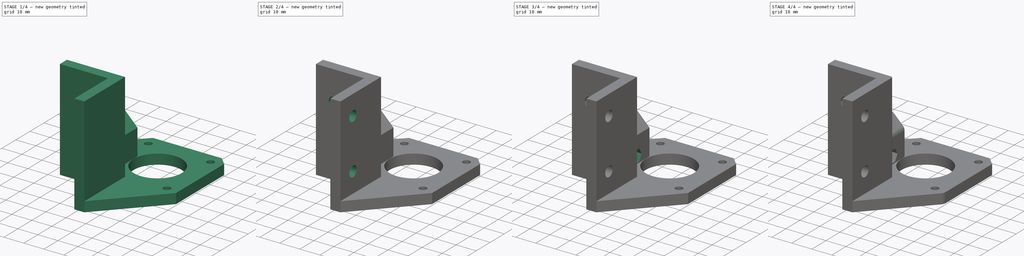
[diagram: build sequence overview — one tinted view per stage of 4, left to right]
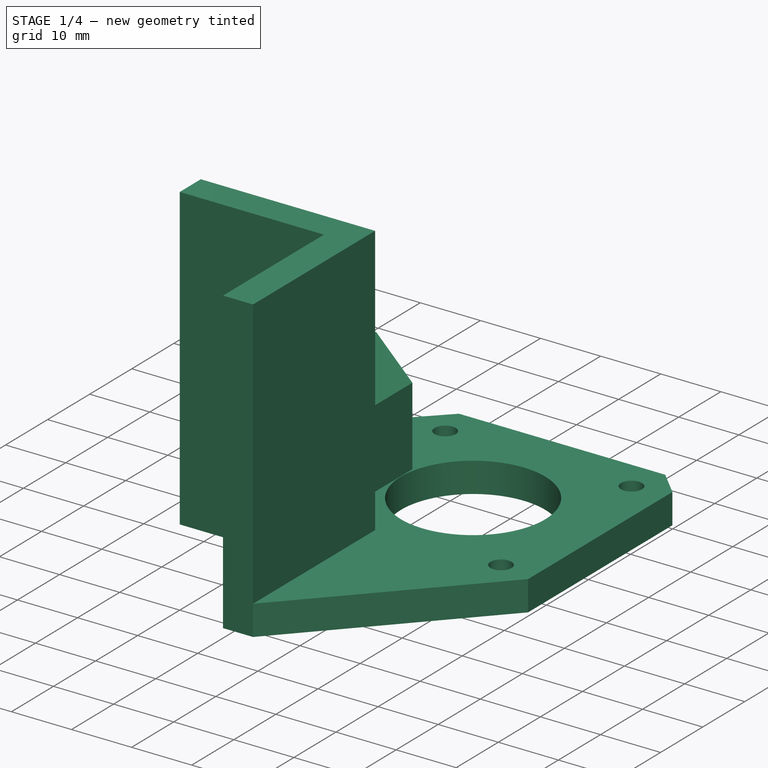
[diagram: stage 1 of 4 — iso view after this stage's code; geometry added in this stage tinted green]
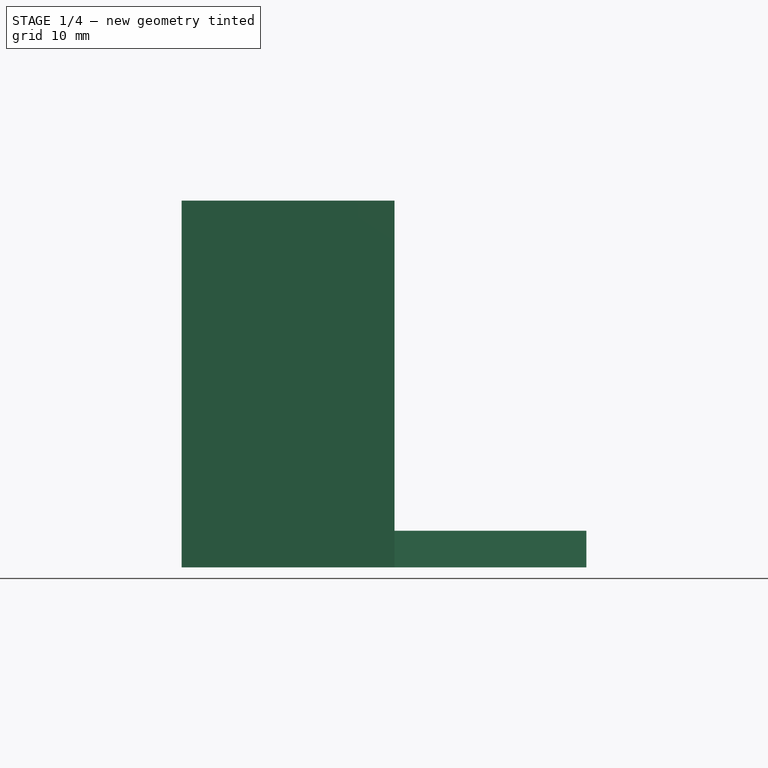
[diagram: stage 1 of 4 — front view after this stage's code; geometry added in this stage tinted green]
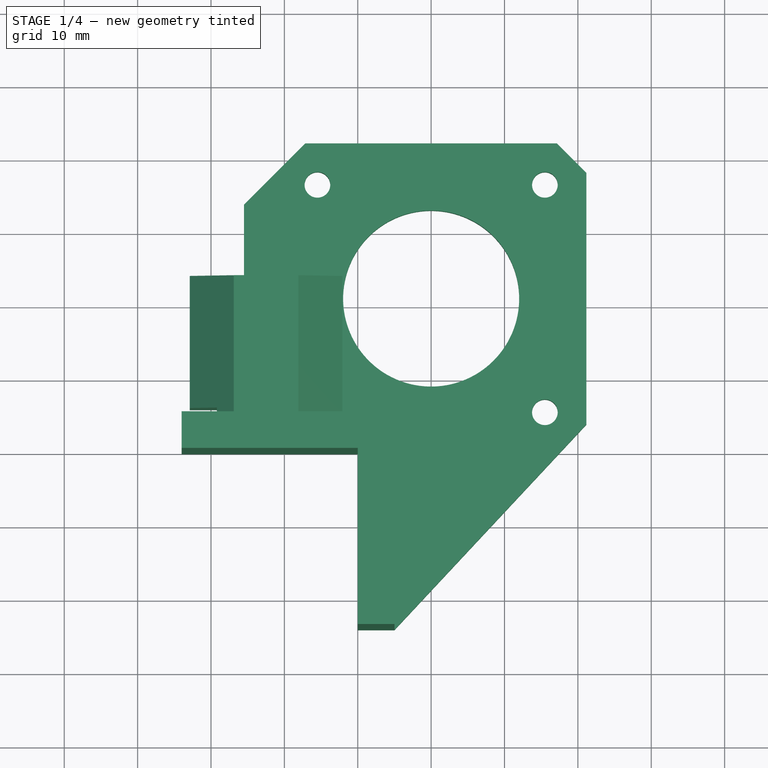
[diagram: stage 1 of 4 — top view after this stage's code; geometry added in this stage tinted green]
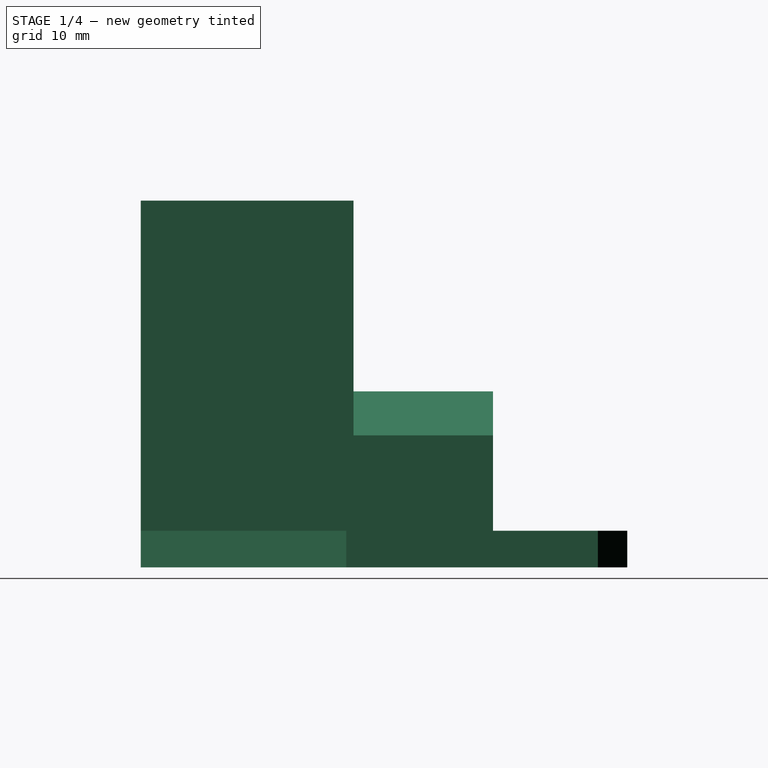
[diagram: stage 1 of 4 — right view after this stage's code; geometry added in this stage tinted green]
FCSTD DOCUMENT  (FreeCAD 0.17R13424 (Git))
Label: Corelia_0_XY_stepper_mount
License: All rights reserved
LicenseURL: http://en.wikipedia.org/wiki/All_rights_reserved
objects: Sketcher::SketchObject×11, PartDesign::Pocket×8, PartDesign::Pad×3, PartDesign::Fillet×2, PartDesign::Chamfer×1, PartDesign::Body×1
note: 37 computed .brp shape members not serialized (recipe doc carries the construction recipe); baked Part::Feature solids carry a one-line shape summary decoded from their .brp

FEATURE [Sketcher::SketchObject] Sketch
  MapMode = 5
  Support = -> [XY_Plane]
  sketch-geometry (19):
    g0: LineSegment StartX=0 StartY=0 StartZ=0 EndX=-24 EndY=0 EndZ=0
    g1: LineSegment StartX=-24 StartY=0 StartZ=0 EndX=-24 EndY=5 EndZ=0
    g2: LineSegment StartX=-24 StartY=5 StartZ=0 EndX=-15.5 EndY=5 EndZ=0
    g3: LineSegment StartX=-15.5 StartY=5 StartZ=0 EndX=-15.5 EndY=33.95 EndZ=0
    g4: LineSegment StartX=-15.5 StartY=33.95 StartZ=0 EndX=-7.15 EndY=42.3 EndZ=0
    g5: LineSegment StartX=-7.15 StartY=42.3 StartZ=0 EndX=27.15 EndY=42.3 EndZ=0
    g6: LineSegment StartX=27.15 StartY=42.3 StartZ=0 EndX=31.15 EndY=38.3 EndZ=0
    g7: LineSegment StartX=31.15 StartY=38.3 StartZ=0 EndX=31.15 EndY=4 EndZ=0
    g8: LineSegment StartX=31.15 StartY=4 StartZ=0 EndX=5 EndY=-24 EndZ=0
    g9: LineSegment StartX=5 StartY=-24 StartZ=0 EndX=0 EndY=-24 EndZ=0
    g10: LineSegment StartX=0 StartY=-24 StartZ=0 EndX=0 EndY=0 EndZ=0
    g11: Circle CenterX=10 CenterY=21.15 CenterZ=0 NormalX=0 NormalY=0 NormalZ=1 AngleXU=0 Radius=12
    g12: LineSegment [constr] StartX=-5.5 StartY=36.65 StartZ=0 EndX=25.5 EndY=36.65 EndZ=0
    g13: LineSegment [constr] StartX=25.5 StartY=36.65 StartZ=0 EndX=25.5 EndY=5.65 EndZ=0
    g14: LineSegment [constr] StartX=25.5 StartY=5.65 StartZ=0 EndX=-5.5 EndY=5.65 EndZ=0
    g15: LineSegment [constr] StartX=-5.5 StartY=5.65 StartZ=0 EndX=-5.5 EndY=36.65 EndZ=0
    g16: Circle CenterX=-5.5 CenterY=36.65 CenterZ=0 NormalX=0 NormalY=0 NormalZ=1 AngleXU=0 Radius=1.75
    g17: Circle CenterX=25.5 CenterY=36.65 CenterZ=0 NormalX=0 NormalY=0 NormalZ=1 AngleXU=0 Radius=1.75
    g18: Circle CenterX=25.5 CenterY=5.65 CenterZ=0 NormalX=0 NormalY=0 NormalZ=1 AngleXU=0 Radius=1.75
  constraints (53):
    c: Coincident(g-1,g0)
    c: PointOnObject(g0,g-1)
    c: Coincident(g0,g1)
    c: Vertical(g1)
    c: Coincident(g1,g2)
    c: Horizontal(g2)
    c: Coincident(g4,g5)
    c: Horizontal(g5)
    c: Coincident(g5,g6)
    c: Coincident(g6,g7)
    c: Vertical(g7)
    c: Coincident(g7,g8)
    c: Coincident(g8,g9)
    c: Horizontal(g9)
    c: Coincident(g9,g10)
    c: Coincident(g10,g0)
    c: Vertical(g10)
    c: DistanceY(g10,g10) = 24
    c: DistanceX(g0,g0) = 24
    c: DistanceX(g2,g2) = 8.5
    c: Vertical(g3)
    c: DistanceX(g5,g6) = 4
    c: DistanceY(g6,g5) = 4
    c: DistanceY(g7,g5) = 38.3
    c: DistanceY(g0,g4) = 42.3
    c: Radius(g11) = 12
    c: DistanceX(g11) = 10
    c: DistanceY(g11) = 21.15
    c: DistanceX(g11,g7) = 21.15
    c: DistanceY(g1,g1) = 5
    c: Coincident(g12,g13)
    c: Coincident(g13,g14)
    c: Coincident(g14,g15)
    c: Coincident(g15,g12)
    c: Horizontal(g12)
    c: Horizontal(g14)
    c: Vertical(g13)
    c: Vertical(g15)
    c: Equal(g15,g12)
    c: DistanceY(g13,g12) = 31
    c: DistanceX(g11,g13) = 15.5
    c: DistanceY(g13,g11) = 15.5
    c: Coincident(g16,g12)
    c: Coincident(g17,g12)
    c: Coincident(g18,g13)
    c: Equal(g16,g17)
    c: Equal(g17,g18)
    c: Radius(g16) = 1.75
    c: Coincident(g3,g2)
    c: DistanceX(g9,g9) = 5
    c: Angle(g4,g5) = 2.35619
    c: Coincident(g3,g4)
    c: DistanceX(g4,g12) = 1.65
FEATURE [PartDesign::Pad] Pad  label="Base"
  Length = 5
  Length2 = 100
  Profile = -> Sketch
  Type = 0
FEATURE [Sketcher::SketchObject] Sketch001
  MapMode = 5
  Placement = pos=(0,0,5) rot=(0,0,1;0rad)
  Support = -> [Pad]
  sketch-geometry (6):
    g0: LineSegment StartX=0 StartY=0 StartZ=0 EndX=-24 EndY=0 EndZ=0
    g1: LineSegment StartX=-24 StartY=0 StartZ=0 EndX=-24 EndY=5 EndZ=0
    g2: LineSegment StartX=-24 StartY=5 StartZ=0 EndX=5 EndY=5 EndZ=0
    g3: LineSegment StartX=5 StartY=5 StartZ=0 EndX=5 EndY=-24 EndZ=0
    g4: LineSegment StartX=5 StartY=-24 StartZ=0 EndX=0 EndY=-24 EndZ=0
    g5: LineSegment StartX=0 StartY=-24 StartZ=0 EndX=0 EndY=0 EndZ=0
  constraints (17):
    c: Coincident(g-1,g0)
    c: PointOnObject(g0,g-1)
    c: Coincident(g0,g1)
    c: Vertical(g1)
    c: Coincident(g1,g2)
    c: Horizontal(g2)
    c: Coincident(g2,g3)
    c: Vertical(g3)
    c: Coincident(g3,g4)
    c: PointOnObject(g4,g-2)
    c: Horizontal(g4)
    c: Coincident(g4,g5)
    c: Coincident(g5,g0)
    c: Equal(g1,g4)
    c: DistanceY(g1,g1) = 5
    c: Equal(g5,g0)
    c: DistanceY(g5,g5) = 24
FEATURE [PartDesign::Pad] Pad001  label="walls"
  BaseFeature = -> Pad
  Length = 45
  Length2 = 100
  Profile = -> Sketch001
  Type = 0
FEATURE [Sketcher::SketchObject] Sketch002
  MapMode = 5
  Placement = pos=(0,5,0) rot=(0,0.707107,0.707107;3.14159rad)
  Support = -> [Pad001]
  sketch-geometry (8):
    g0: LineSegment StartX=22.9 StartY=0 StartZ=0 EndX=22.9 EndY=18 EndZ=0
    g1: LineSegment StartX=22.9 StartY=18 StartZ=0 EndX=16.9 EndY=24 EndZ=0
    g2: LineSegment StartX=16.9 StartY=24 StartZ=0 EndX=8.1 EndY=24 EndZ=0
    g3: LineSegment StartX=8.1 StartY=24 StartZ=0 EndX=2.1 EndY=18 EndZ=0
    g4: LineSegment StartX=2.1 StartY=18 StartZ=0 EndX=2.1 EndY=5 EndZ=0
    g5: LineSegment StartX=2.1 StartY=5 StartZ=0 EndX=16.5 EndY=5 EndZ=0
    g6: LineSegment StartX=16.5 StartY=5 StartZ=0 EndX=16.5 EndY=0 EndZ=0
    g7: LineSegment StartX=16.5 StartY=0 StartZ=0 EndX=22.9 EndY=0 EndZ=0
  constraints (24):
    c: Vertical(g0)
    c: Coincident(g0,g1)
    c: Coincident(g1,g2)
    c: Horizontal(g2)
    c: Coincident(g2,g3)
    c: Coincident(g3,g4)
    c: Vertical(g4)
    c: DistanceX(g4,g0) = 20.8
    c: DistanceY(g0,g1) = 24
    c: Equal(g3,g1)
    c: Angle(g3,g2) = 2.35619
    c: Angle(g2,g1) = 2.35619
    c: Coincident(g5,g4)
    c: Horizontal(g5)
    c: Coincident(g6,g5)
    c: Vertical(g6)
    c: Coincident(g7,g6)
    c: Horizontal(g7)
    c: Coincident(g7,g0)
    c: DistanceY(g6,g5) = 5
    c: DistanceX(g5) = 16.5
    c: DistanceY(g5) = 5
    c: DistanceX(g7,g7) = 6.4
    c: DistanceY(g0,g0) = 18
FEATURE [PartDesign::Pad] Pad002  label="rod_house"
  BaseFeature = -> Pad001
  Length = 19
  Length2 = 100
  Profile = -> Sketch002
  Type = 0
FEATURE [Sketcher::SketchObject] Sketch003
  MapMode = 5
  Placement = pos=(0,5,0) rot=(0,0.707107,0.707107;3.14159rad)
  Support = -> [Pad002]
  sketch-geometry (5):
    g0: LineSegment StartX=15.5 StartY=0 StartZ=0 EndX=15.5 EndY=18 EndZ=0
    g1: LineSegment StartX=22.9 StartY=18 StartZ=0 EndX=22.9 EndY=0 EndZ=0
    g2: LineSegment StartX=22.9 StartY=0 StartZ=0 EndX=15.5 EndY=0 EndZ=0
    g3: LineSegment StartX=15.5 StartY=18 StartZ=0 EndX=19.2 EndY=21.7 EndZ=0
    g4: LineSegment StartX=19.2 StartY=21.7 StartZ=0 EndX=22.9 EndY=18 EndZ=0
  constraints (15):
    c: PointOnObject(g0,g-1)
    c: Vertical(g0)
    c: Vertical(g1)
    c: Coincident(g1,g2)
    c: Horizontal(g2)
    c: Coincident(g2,g0)
    c: DistanceX(g2,g2) = 7.4
    c: DistanceX(g-1,g0) = 15.5
    c: Coincident(g0,g3)
    c: Coincident(g3,g4)
    c: Coincident(g4,g1)
    c: Angle(g0,g3) = 2.35619
    c: Angle(g4,g1) = 2.35619
    c: Equal(g0,g1)
    c: DistanceY(g1,g1) = 18
FEATURE [PartDesign::Pocket] Pocket  label="hod_house_back_cut"
  BaseFeature = -> Pad002
  Length = 1
  Length2 = 100
  Profile = -> Sketch003
  Reversed = true
  Type = 0
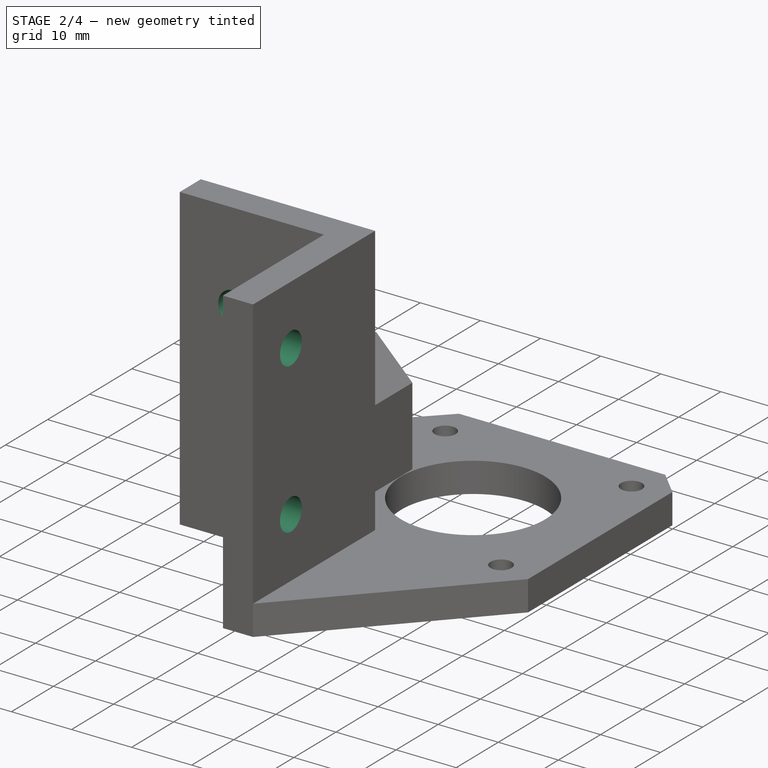
[diagram: stage 2 of 4 — iso view after this stage's code; geometry added in this stage tinted green]
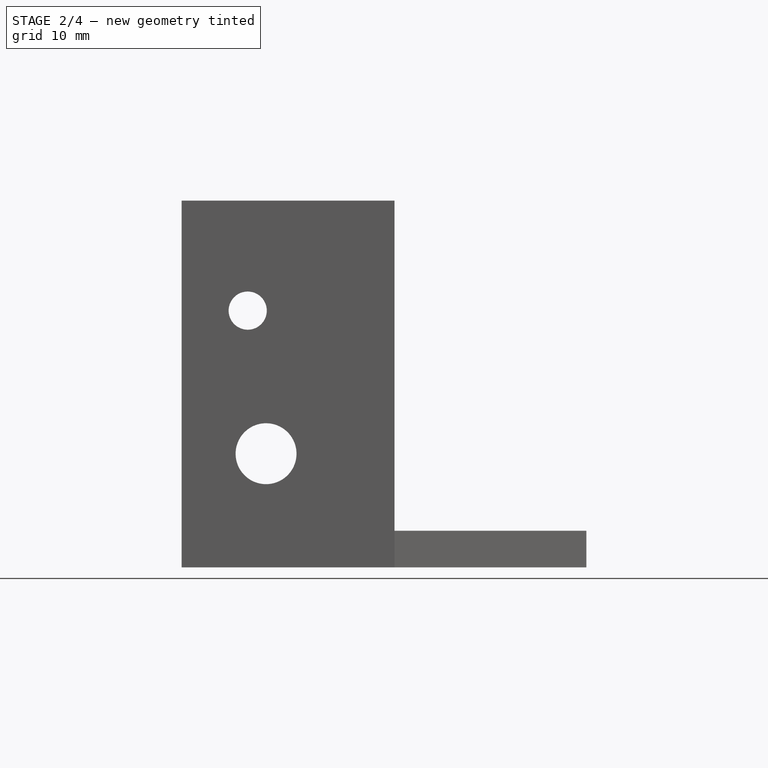
[diagram: stage 2 of 4 — front view after this stage's code; geometry added in this stage tinted green]
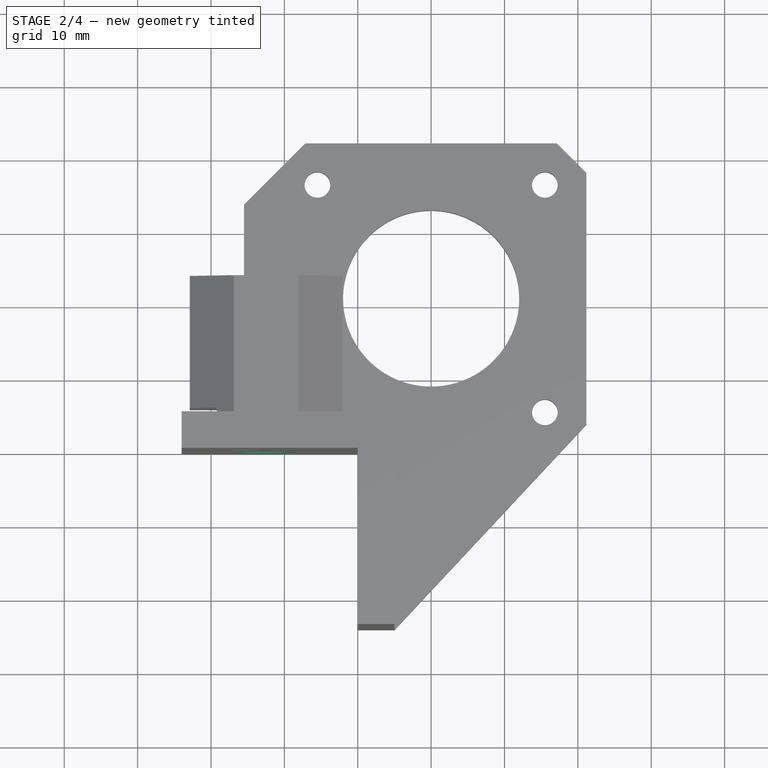
[diagram: stage 2 of 4 — top view after this stage's code; geometry added in this stage tinted green]
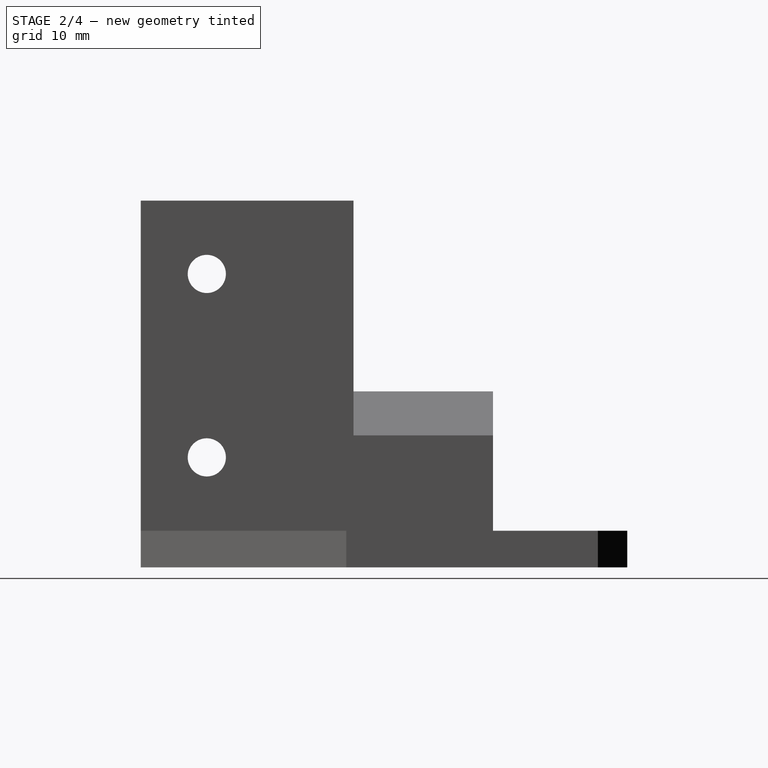
[diagram: stage 2 of 4 — right view after this stage's code; geometry added in this stage tinted green]
FEATURE [Sketcher::SketchObject] Sketch004
  MapMode = 5
  Placement = pos=(0,24,0) rot=(0,0.707107,0.707107;3.14159rad)
  Support = -> [Pocket]
  sketch-geometry (1):
    g0: Circle CenterX=12.5 CenterY=15.5 CenterZ=0 NormalX=0 NormalY=0 NormalZ=1 AngleXU=0 Radius=4.15
  constraints (3):
    c: DistanceX(g0) = 12.5
    c: DistanceY(g0) = 15.5
    c: Radius(g0) = 4.15
FEATURE [PartDesign::Pocket] Pocket001  label="rod_hole"
  BaseFeature = -> Pocket
  Length = 0
  Length2 = 100
  Profile = -> Sketch004
  Type = 1
FEATURE [Sketcher::SketchObject] Sketch005
  MapMode = 5
  Placement = pos=(0,0,0) rot=(1,0,0;1.5708rad)
  Support = -> [Pocket001]
  sketch-geometry (1):
    g0: Circle CenterX=-15 CenterY=35 CenterZ=0 NormalX=0 NormalY=0 NormalZ=1 AngleXU=0 Radius=2.6
  constraints (3):
    c: DistanceX(g0) = -15
    c: DistanceY(g0) = 35
    c: Radius(g0) = 2.6
FEATURE [PartDesign::Pocket] Pocket002  label="wall_hole"
  BaseFeature = -> Pocket001
  Length = 5
  Length2 = 100
  Profile = -> Sketch005
  Type = 1
FEATURE [Sketcher::SketchObject] Sketch006
  MapMode = 5
  Placement = pos=(0,0,0) rot=(0.57735,-0.57735,-0.57735;2.0944rad)
  Support = -> [Pocket002]
  sketch-geometry (2):
    g0: Circle CenterX=15 CenterY=40 CenterZ=0 NormalX=0 NormalY=0 NormalZ=1 AngleXU=0 Radius=2.6
    g1: Circle CenterX=15 CenterY=15 CenterZ=0 NormalX=0 NormalY=0 NormalZ=1 AngleXU=0 Radius=2.6
  constraints (6):
    c: Equal(g0,g1)
    c: DistanceX(g1) = 15
    c: DistanceY(g1) = 15
    c: Radius(g1) = 2.6
    c: DistanceX(g0) = 15
    c: DistanceY(g0) = 40
FEATURE [PartDesign::Pocket] Pocket003  label="wall_holes"
  BaseFeature = -> Pocket002
  Length = 5
  Length2 = 100
  Profile = -> Sketch006
  Type = 0
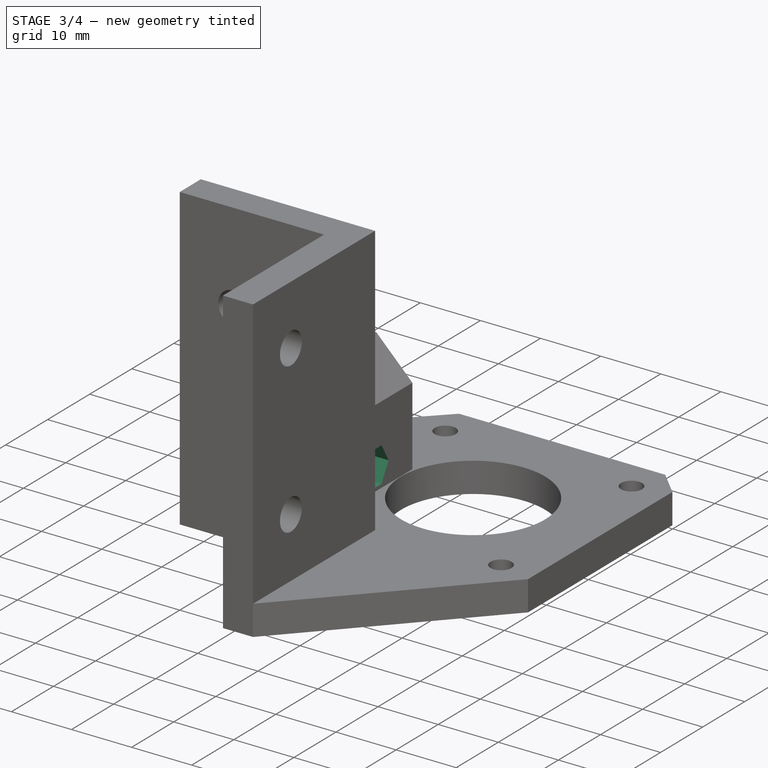
[diagram: stage 3 of 4 — iso view after this stage's code; geometry added in this stage tinted green]
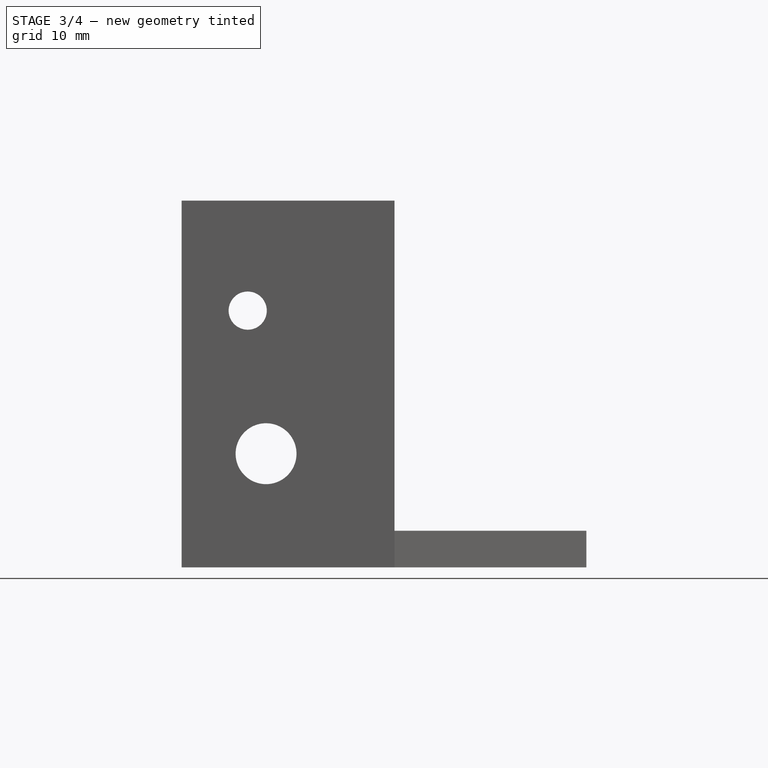
[diagram: stage 3 of 4 — front view after this stage's code; geometry added in this stage tinted green]
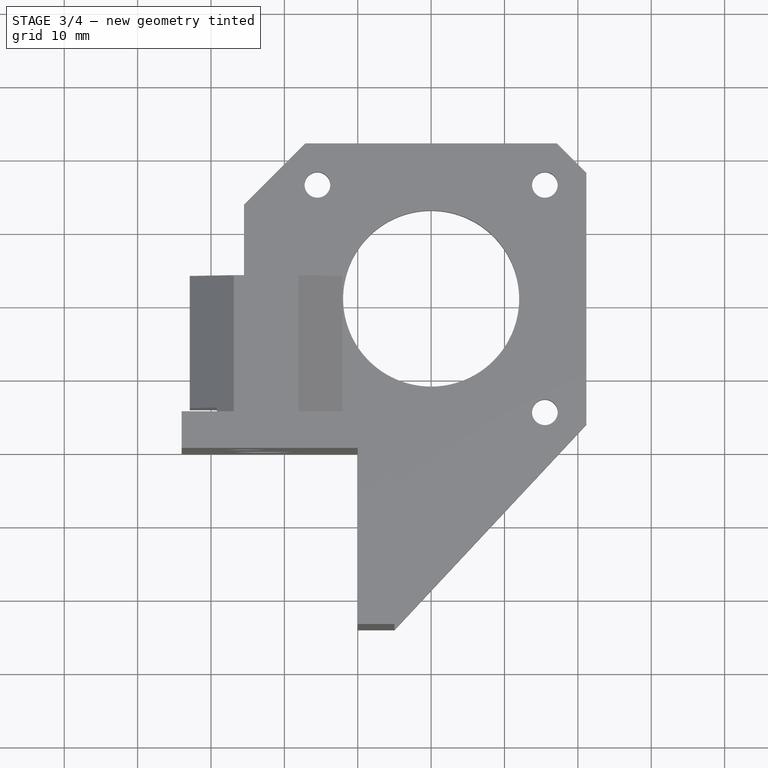
[diagram: stage 3 of 4 — top view after this stage's code; geometry added in this stage tinted green]
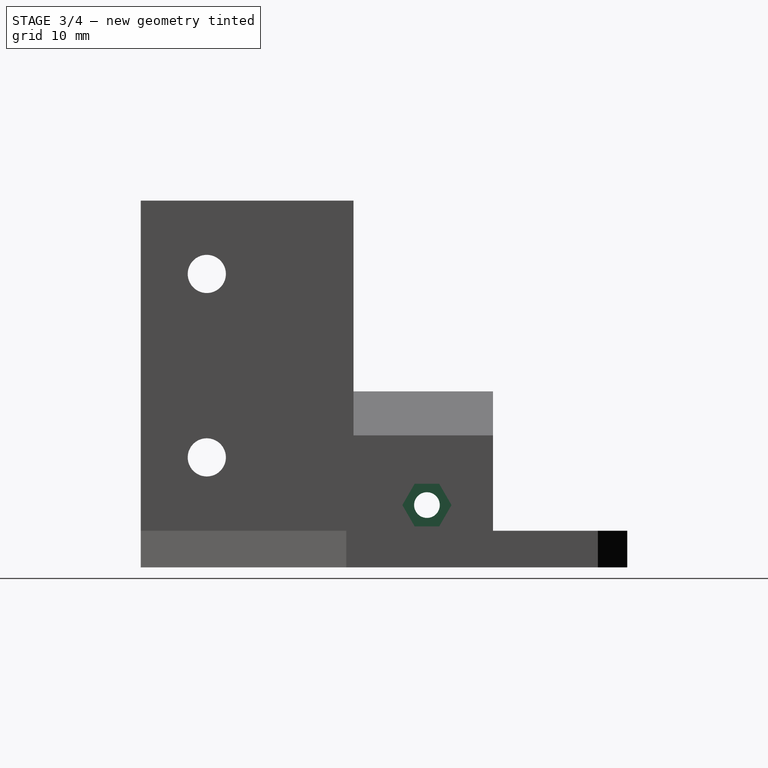
[diagram: stage 3 of 4 — right view after this stage's code; geometry added in this stage tinted green]
FEATURE [Sketcher::SketchObject] Sketch008
  MapMode = 5
  Placement = pos=(-2.1,0,0) rot=(0.57735,0.57735,0.57735;2.0944rad)
  Support = -> [Pocket003]
  sketch-geometry (1):
    g0: Circle CenterX=15 CenterY=8.5 CenterZ=0 NormalX=0 NormalY=0 NormalZ=1 AngleXU=0 Radius=1.75
  constraints (3):
    c: DistanceX(g0) = 15
    c: DistanceY(g0) = 8.5
    c: Radius(g0) = 1.75
FEATURE [PartDesign::Pocket] Pocket004  label="clamp_screw_hole"
  BaseFeature = -> Pocket003
  Length = 5
  Length2 = 100
  Profile = -> Sketch008
  Type = 1
FEATURE [Sketcher::SketchObject] Sketch009
  MapMode = 5
  Placement = pos=(-2.1,0,0) rot=(0.57735,0.57735,0.57735;2.0944rad)
  Support = -> [Pocket004]
  sketch-geometry (7):
    g0: LineSegment StartX=16.6743 StartY=5.6 StartZ=0 EndX=18.3486 EndY=8.5 EndZ=0
    g1: LineSegment StartX=18.3486 StartY=8.5 StartZ=0 EndX=16.6743 EndY=11.4 EndZ=0
    g2: LineSegment StartX=16.6743 StartY=11.4 StartZ=0 EndX=13.3257 EndY=11.4 EndZ=0
    g3: LineSegment StartX=13.3257 StartY=11.4 StartZ=0 EndX=11.6514 EndY=8.5 EndZ=0
    g4: LineSegment StartX=11.6514 StartY=8.5 StartZ=0 EndX=13.3257 EndY=5.6 EndZ=0
    g5: LineSegment StartX=13.3257 StartY=5.6 StartZ=0 EndX=16.6743 EndY=5.6 EndZ=0
    g6: Circle [constr] CenterX=15 CenterY=8.5 CenterZ=0 NormalX=0 NormalY=0 NormalZ=1 AngleXU=0 Radius=3.34863
  constraints (17):
    c: Coincident(g0,g1)
    c: Coincident(g1,g2)
    c: Coincident(g2,g3)
    c: Coincident(g3,g4)
    c: Coincident(g4,g5)
    c: Coincident(g5,g0)
    c: Equal(g0, g1-g5) x5
    c: PointOnObject(g0,g6)
    c: PointOnObject(g1,g6)
    c: PointOnObject(g2,g6)
    c: PointOnObject(g3,g6)
    c: PointOnObject(g4,g6)
    c: PointOnObject(g5,g6)
    c: Horizontal(g2)
    c: DistanceY(g0,g1) = 5.8
    c: DistanceX(g6) = 15
    c: DistanceY(g6) = 8.5
FEATURE [PartDesign::Pocket] Pocket005  label="clamp_nut_hole"
  BaseFeature = -> Pocket004
  Length = 5
  Length2 = 100
  Profile = -> Sketch009
  Type = 0
FEATURE [Sketcher::SketchObject] Sketch010
  MapMode = 5
  Placement = pos=(-22.9,0,0) rot=(0.57735,-0.57735,-0.57735;2.0944rad)
  Support = -> [Pocket005]
  sketch-geometry (1):
    g0: Circle CenterX=-15 CenterY=8.5 CenterZ=0 NormalX=0 NormalY=0 NormalZ=1 AngleXU=0 Radius=3.2
  constraints (3):
    c: Radius(g0) = 3.2
    c: DistanceX(g0) = -15
    c: DistanceY(g0) = 8.5
FEATURE [PartDesign::Pocket] Pocket006  label="clamp_screw_head_hole"
  BaseFeature = -> Pocket005
  Length = 3
  Length2 = 100
  Profile = -> Sketch010
  Type = 0
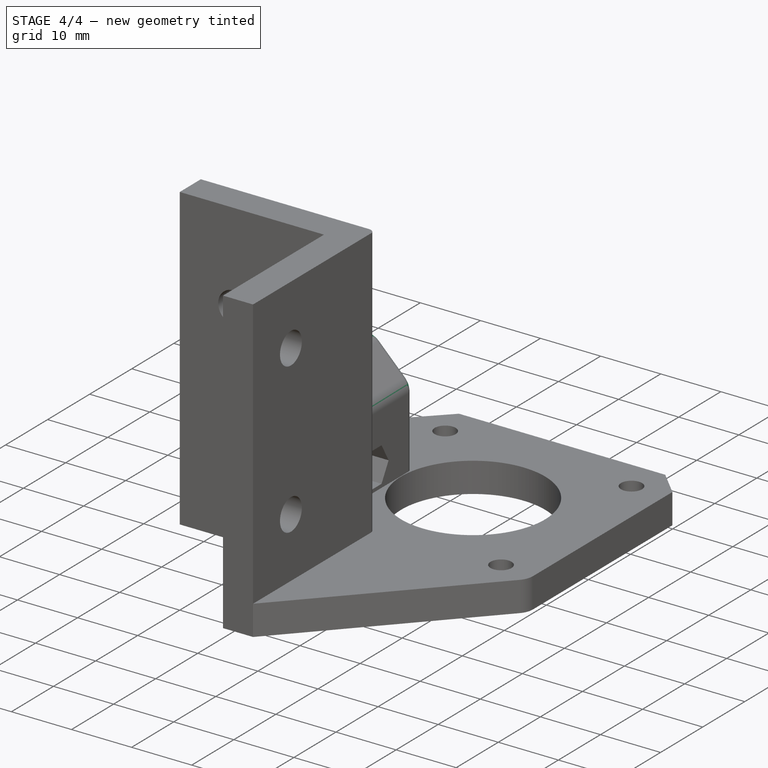
[diagram: stage 4 of 4 — iso view after this stage's code; geometry added in this stage tinted green]
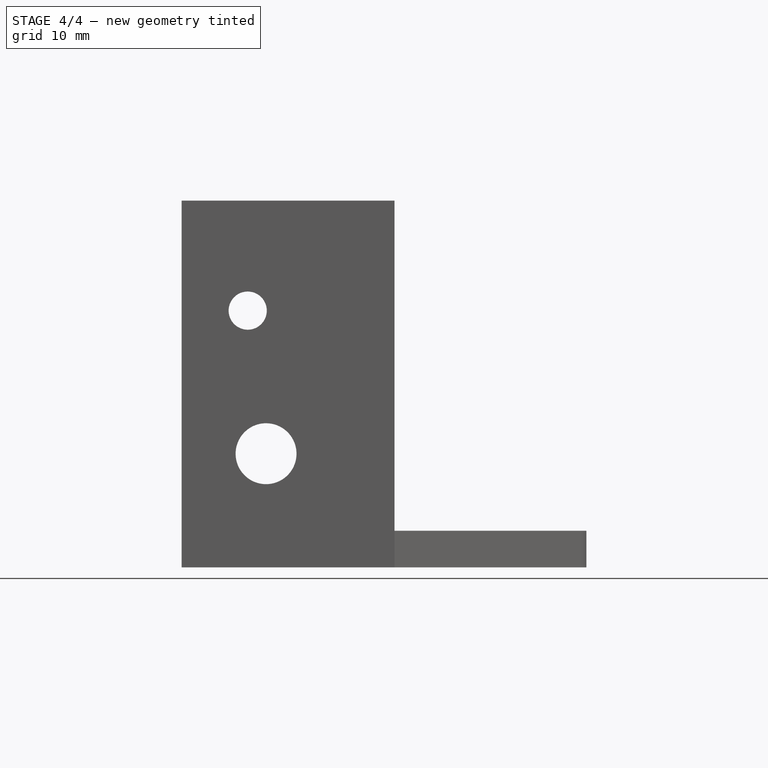
[diagram: stage 4 of 4 — front view after this stage's code; geometry added in this stage tinted green]
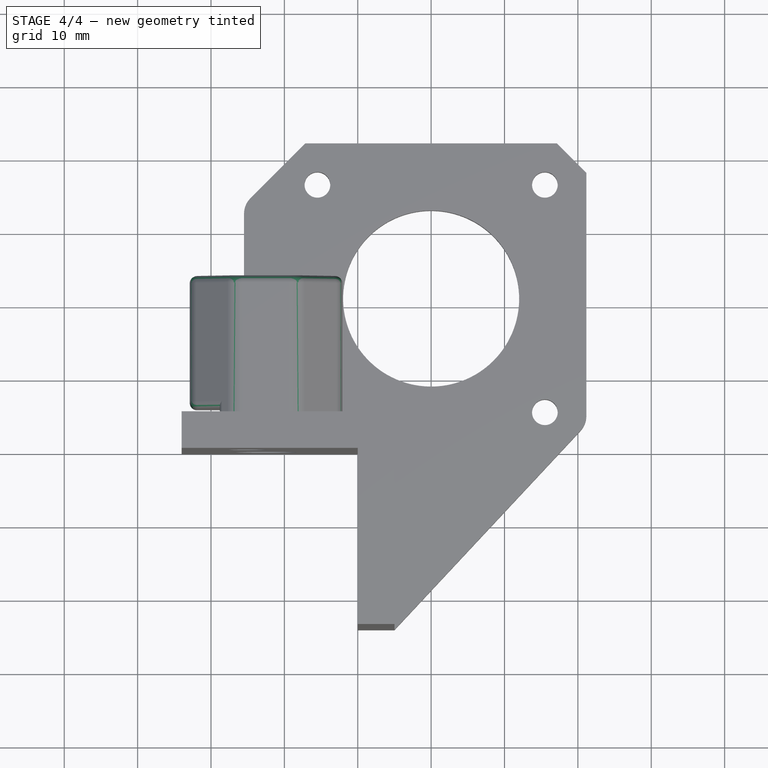
[diagram: stage 4 of 4 — top view after this stage's code; geometry added in this stage tinted green]
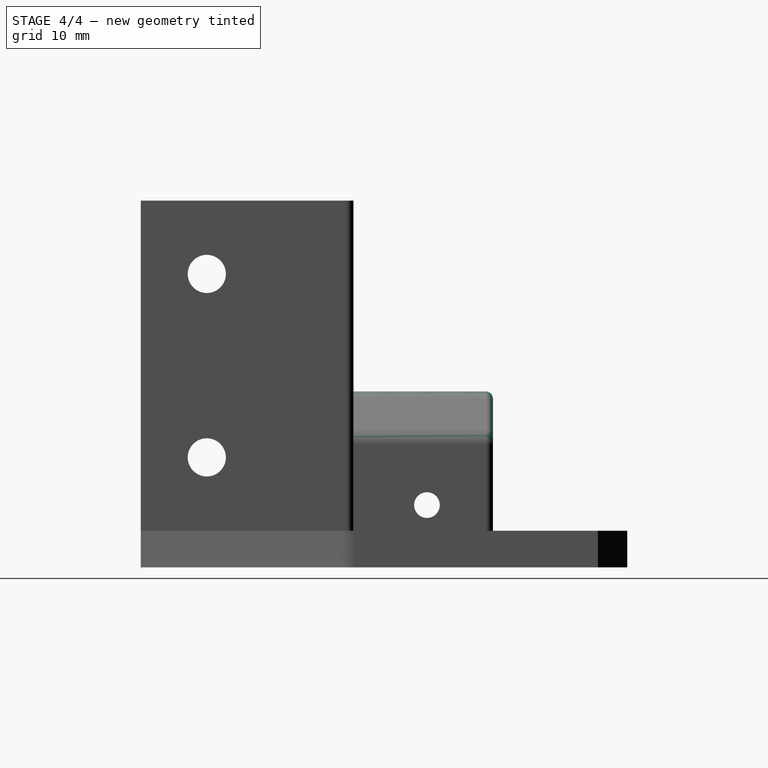
[diagram: stage 4 of 4 — right view after this stage's code; geometry added in this stage tinted green]
FEATURE [Sketcher::SketchObject] Sketch011
  MapMode = 5
  Placement = pos=(0,24,0) rot=(0,0.707107,0.707107;3.14159rad)
  Support = -> [Pocket006]
  sketch-geometry (4):
    g0: LineSegment StartX=15.5 StartY=15 StartZ=0 EndX=16.5 EndY=15 EndZ=0
    g1: LineSegment StartX=16.5 StartY=15 StartZ=0 EndX=16.5 EndY=5 EndZ=0
    g2: LineSegment StartX=16.5 StartY=5 StartZ=0 EndX=15.5 EndY=5 EndZ=0
    g3: LineSegment StartX=15.5 StartY=5 StartZ=0 EndX=15.5 EndY=15 EndZ=0
  constraints (12):
    c: Coincident(g0,g1)
    c: Coincident(g1,g2)
    c: Coincident(g2,g3)
    c: Coincident(g3,g0)
    c: Horizontal(g0)
    c: Horizontal(g2)
    c: Vertical(g1)
    c: Vertical(g3)
    c: DistanceX(g2,g2) = 1
    c: DistanceX(g2) = 15.5
    c: DistanceY(g3,g3) = 10
    c: DistanceY(g2) = 5
FEATURE [PartDesign::Pocket] Pocket007  label="rod_house_front_cut"
  BaseFeature = -> Pocket006
  Length = 18.99
  Length2 = 100
  Profile = -> Sketch011
  Type = 0
FEATURE [PartDesign::Fillet] Fillet
  Base = -> Pocket007 [Edge39,Edge59,Edge125,Edge124,Edge122,Edge123]
  BaseFeature = -> Pocket007
  Radius = 3
FEATURE [PartDesign::Fillet] Fillet001
  Base = -> Fillet [Edge93,Edge113,Edge95,Edge135]
  BaseFeature = -> Fillet
  Radius = 1
FEATURE [PartDesign::Chamfer] Chamfer
  Base = -> Fillet001 [Edge18]
  BaseFeature = -> Fillet001
  Size = 1
FEATURE [PartDesign::Body] Body
  Group = -> [Sketch,Pad,Sketch001,Pad001,Sketch002,Pad002,Sketch003,Pocket,Sketch004,Pocket001,Sketch005,Pocket002,Sketch006,Pocket003,Sketch008,Pocket004,Sketch009,Pocket005,Sketch010,Pocket006,Sketch011,Pocket007,Fillet,Fillet001,Chamfer]
  Origin = -> Origin
  Tip = -> Chamfer
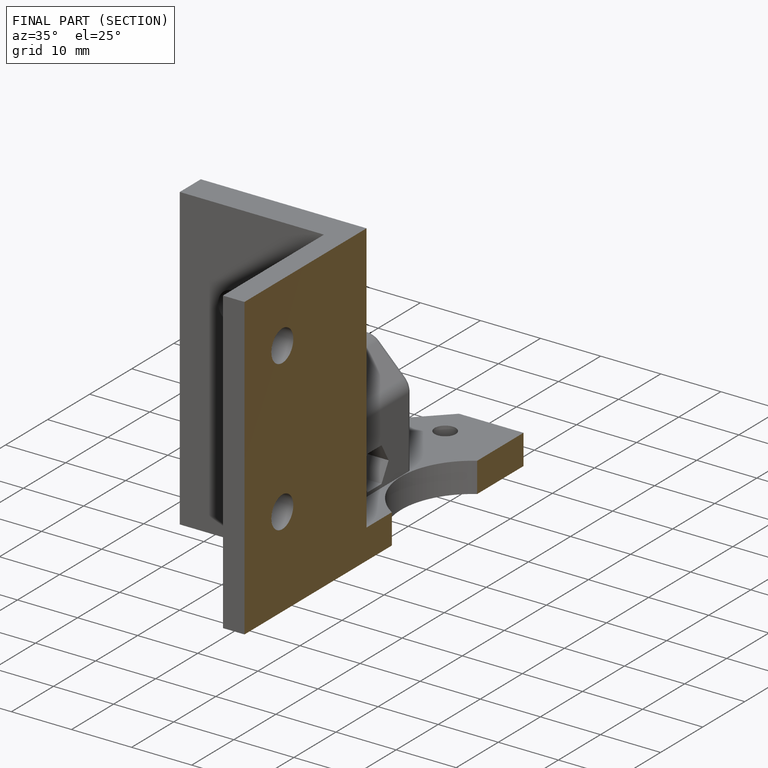
[diagram: finished part — half-section view (interior)]
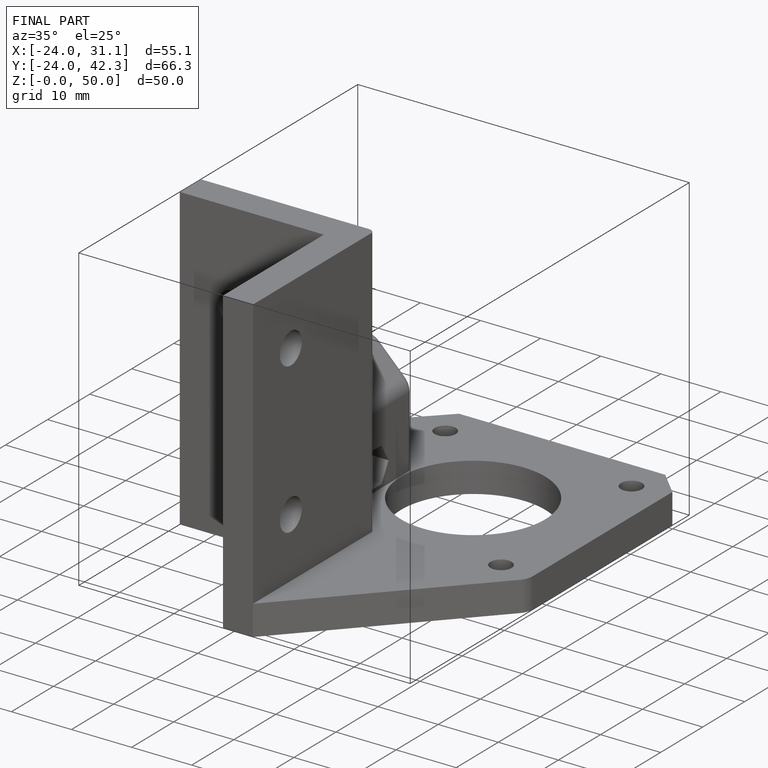
[diagram: finished part — iso view with bounding-box wireframe]
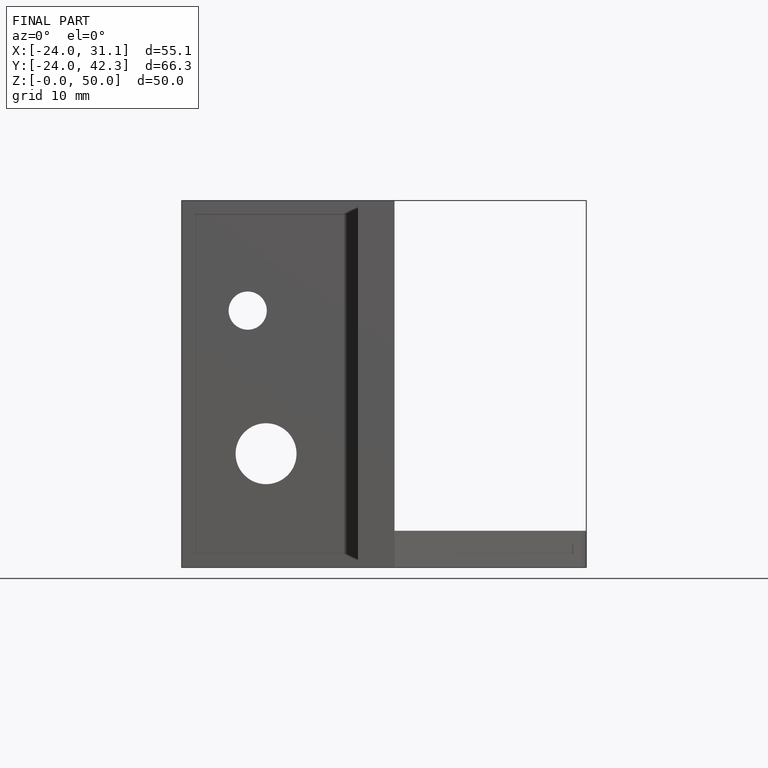
[diagram: finished part — front view with bounding-box wireframe]
